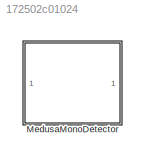
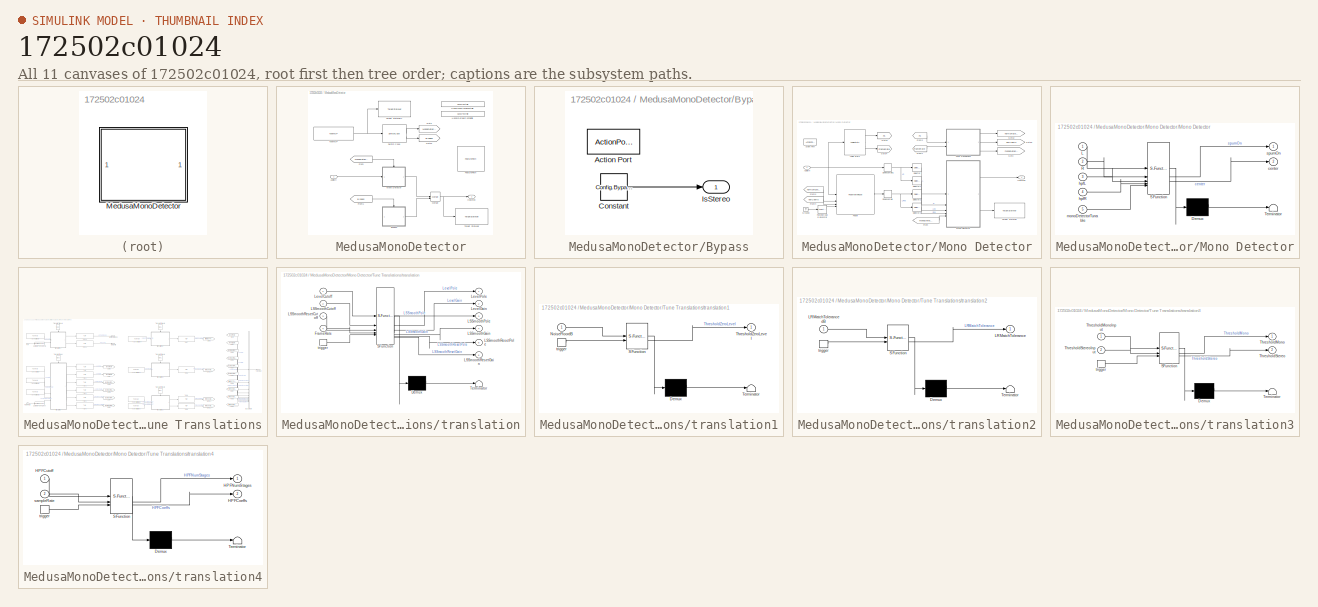
[diagram: thumbnail index - all 11 canvases of the model, root first then tree order]
MODEL slx_172502c01024
KIND library
CONFIG AbsTol = auto
CONFIG EnableMultiTasking = off
CONFIG FixedStep = auto
CONFIG MaxStep = auto
CONFIG MinStep = auto
CONFIG RelTol = 1e-3
CONFIG SampleTimeConstraint = Unconstrained
CONFIG SolverName = VariableStepAuto
CONFIG StartTime = 0.0
CONFIG StopTime = 10.0
BLOCK [SubSystem] MedusaMonoDetector
BLOCK [Inport] MedusaMonoDetector/AudioIn
BLOCK [SubSystem] MedusaMonoDetector/Bypass
BLOCK [ActionPort] MedusaMonoDetector/Bypass/Action Port
  ActionPortLabel = default: { }
BLOCK [Constant] MedusaMonoDetector/Bypass/Constant
  OutDataTypeStr = uint32
  Value = Config.BypassValue
BLOCK [Outport] MedusaMonoDetector/Bypass/IsStereo
  VectorParamsAs1DForOutWhenUnconnected = off
BLOCK [Reference] MedusaMonoDetector/FeaturePath  REF=FeaturePath/FeaturePath
  SourceBlock = FeaturePath/FeaturePath
  SourceProductName = Bose Talaria
  SourceType = Talaria Feature Path
BLOCK [From] MedusaMonoDetector/From
  GotoTag = MonoDetector
BLOCK [From] MedusaMonoDetector/From1
  GotoTag = Bypass
BLOCK [Goto] MedusaMonoDetector/Goto
  GotoTag = MonoDetector
BLOCK [Goto] MedusaMonoDetector/Goto1
  GotoTag = Bypass
BLOCK [Reference] MedusaMonoDetector/HandyDefaultConfigFile  REF=HandyTextFile/HandyTextFile
  SourceBlock = HandyTextFile/HandyTextFile
  SourceProductName = Bose Talaria
  SourceType = Talaria Handy Text File
BLOCK [Reference] MedusaMonoDetector/HandyTuneConfigTextFile  REF=HandyTextFile/HandyTextFile
  SourceBlock = HandyTextFile/HandyTextFile
  SourceProductName = Bose Talaria
  SourceType = Talaria Handy Text File
BLOCK [Outport] MedusaMonoDetector/IsStereo
  VectorParamsAs1DForOutWhenUnconnected = off
BLOCK [Merge] MedusaMonoDetector/Merge
BLOCK [SubSystem] MedusaMonoDetector/Mono Detector
BLOCK [ActionPort] MedusaMonoDetector/Mono Detector/Action Port
  ActionPortLabel = case: { }
BLOCK [Reference] MedusaMonoDetector/Mono Detector/Audio Stats  REF=AudioStats/AudioStats
  SourceBlock = AudioStats/AudioStats
  SourceProductName = Bose Talaria
  SourceType = Talaria Audio Statistics
BLOCK [Inport] MedusaMonoDetector/Mono Detector/AudioIn
  OutDataTypeStr = single
  VarSizeSig = No
BLOCK [DownSample] MedusaMonoDetector/Mono Detector/Downsample
  N = Config.DownSamplingFactor
BLOCK [DownSample] MedusaMonoDetector/Mono Detector/Downsample1
  N = Config.DownSamplingFactor
BLOCK [From] MedusaMonoDetector/Mono Detector/From
  GotoTag = monoDetectorTunable
BLOCK [From] MedusaMonoDetector/Mono Detector/From1
  GotoTag = FrameRate
BLOCK [From] MedusaMonoDetector/Mono Detector/From2
  GotoTag = Fs
BLOCK [From] MedusaMonoDetector/Mono Detector/From3
  GotoTag = hpfNumStages
BLOCK [From] MedusaMonoDetector/Mono Detector/From4
  GotoTag = hpfCoeffs
BLOCK [Reference] MedusaMonoDetector/Mono Detector/Function-Call Generator  REF=simulink/Ports &
Subsystems/Function-Call
Generator
  SourceBlock = simulink/Ports &\nSubsystems/Function-Call\nGenerator
  SourceType = Function-Call Generator
BLOCK [Goto] MedusaMonoDetector/Mono Detector/Goto
  GotoTag = monoDetectorTunable
BLOCK [Goto] MedusaMonoDetector/Mono Detector/Goto1
  GotoTag = Fs
BLOCK [Goto] MedusaMonoDetector/Mono Detector/Goto2
  GotoTag = hpfNumStages
BLOCK [Goto] MedusaMonoDetector/Mono Detector/Goto3
  GotoTag = hpfCoeffs
BLOCK [Goto] MedusaMonoDetector/Mono Detector/Goto4
  GotoTag = FrameRate
BLOCK [Ground] MedusaMonoDetector/Mono Detector/Ground
BLOCK [Outport] MedusaMonoDetector/Mono Detector/IsStereo
  VectorParamsAs1DForOutWhenUnconnected = off
BLOCK [SubSystem] MedusaMonoDetector/Mono Detector/Mono Detector
  ErrorFcn = Stateflow.Translate.translate
  PermitHierarchicalResolution = ExplicitOnly
  SFBlockType = MATLAB Function
  TreatAsAtomicUnit = on
BLOCK [Demux] MedusaMonoDetector/Mono Detector/Mono Detector/ Demux 
  Outputs = 1
BLOCK [S-Function] MedusaMonoDetector/Mono Detector/Mono Detector/ SFunction 
  EnableBusSupport = off
  FunctionName = sf_sfun
  Parameters = maxZeroLevelCount
  PortCounts = [5 3]
  SFcnIsStateOwnerBlock = off
  SFunctionDeploymentMode = off
  Tag = Stateflow S-Function 2
BLOCK [Terminator] MedusaMonoDetector/Mono Detector/Mono Detector/ Terminator 
BLOCK [Inport] MedusaMonoDetector/Mono Detector/Mono Detector/L
BLOCK [Inport] MedusaMonoDetector/Mono Detector/Mono Detector/R
  Port = 2
BLOCK [Outport] MedusaMonoDetector/Mono Detector/Mono Detector/center
  Port = 2
  VectorParamsAs1DForOutWhenUnconnected = off
BLOCK [Inport] MedusaMonoDetector/Mono Detector/Mono Detector/hpfL
  Port = 3
BLOCK [Inport] MedusaMonoDetector/Mono Detector/Mono Detector/hpfR
  Port = 4
BLOCK [Inport] MedusaMonoDetector/Mono Detector/Mono Detector/monoDetectorTunable
  Port = 5
BLOCK [Outport] MedusaMonoDetector/Mono Detector/Mono Detector/spumOn
  VectorParamsAs1DForOutWhenUnconnected = off
BLOCK [Reference] MedusaMonoDetector/Mono Detector/PoolIir  REF=PoolIir/PoolIirWithReset
  SourceBlock = PoolIir/PoolIirWithReset
  SourceType = Bose Pool IIR With Reset
BLOCK [Selector] MedusaMonoDetector/Mono Detector/Selector
  IndexOptions = Index vector (dialog)
  Indices = 1
  InputPortWidth = 2
  OutputSizes = 1
BLOCK [Selector] MedusaMonoDetector/Mono Detector/Selector1
  IndexOptions = Index vector (dialog)
  Indices = 2
  InputPortWidth = 2
  OutputSizes = 1
BLOCK [Selector] MedusaMonoDetector/Mono Detector/Selector2
  IndexOptions = Index vector (dialog)
  Indices = 1
  InputPortWidth = 2
  OutputSizes = 1
BLOCK [Selector] MedusaMonoDetector/Mono Detector/Selector3
  IndexOptions = Index vector (dialog)
  Indices = 2
  InputPortWidth = 2
  OutputSizes = 1
BLOCK [Reference] MedusaMonoDetector/Mono Detector/Target StateVar  REF=StateVar/TargetStateVar
  SourceBlock = StateVar/TargetStateVar
  SourceProductName = Bose Talaria
  SourceType = Talaria Target State Variable
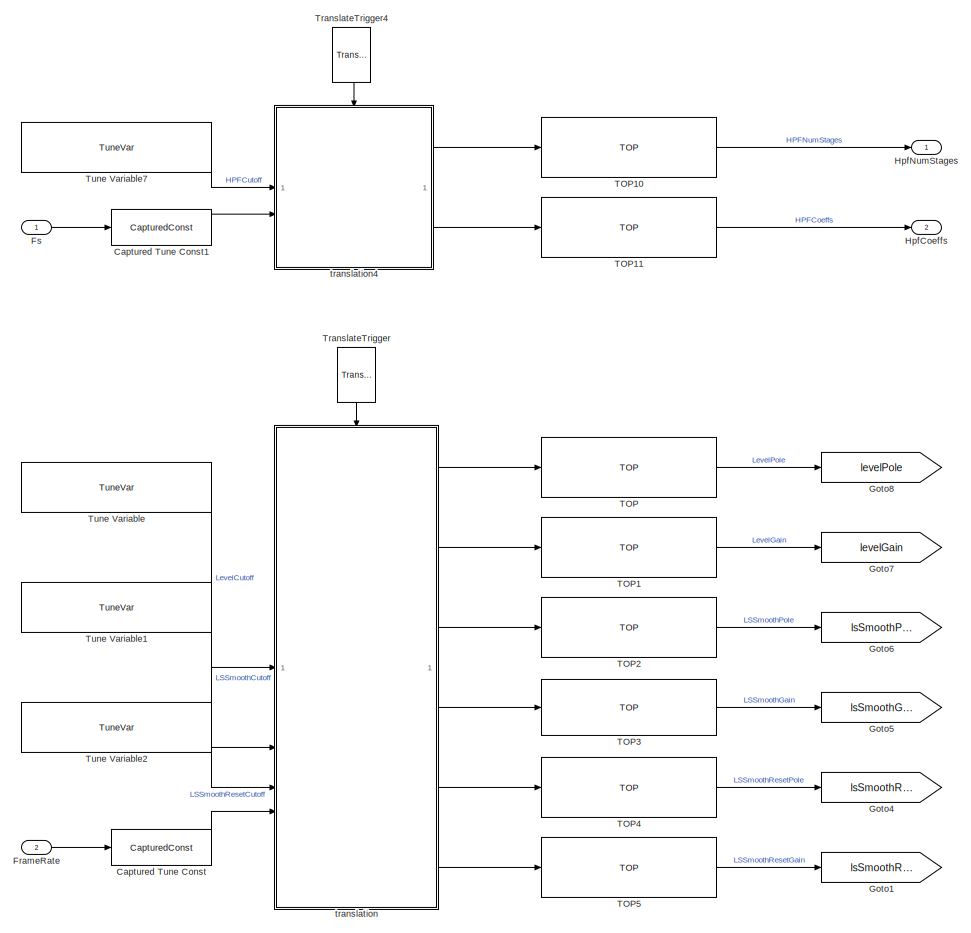
[diagram: MedusaMonoDetector/Mono Detector/Tune Translations - part 1/3, left side, full height]
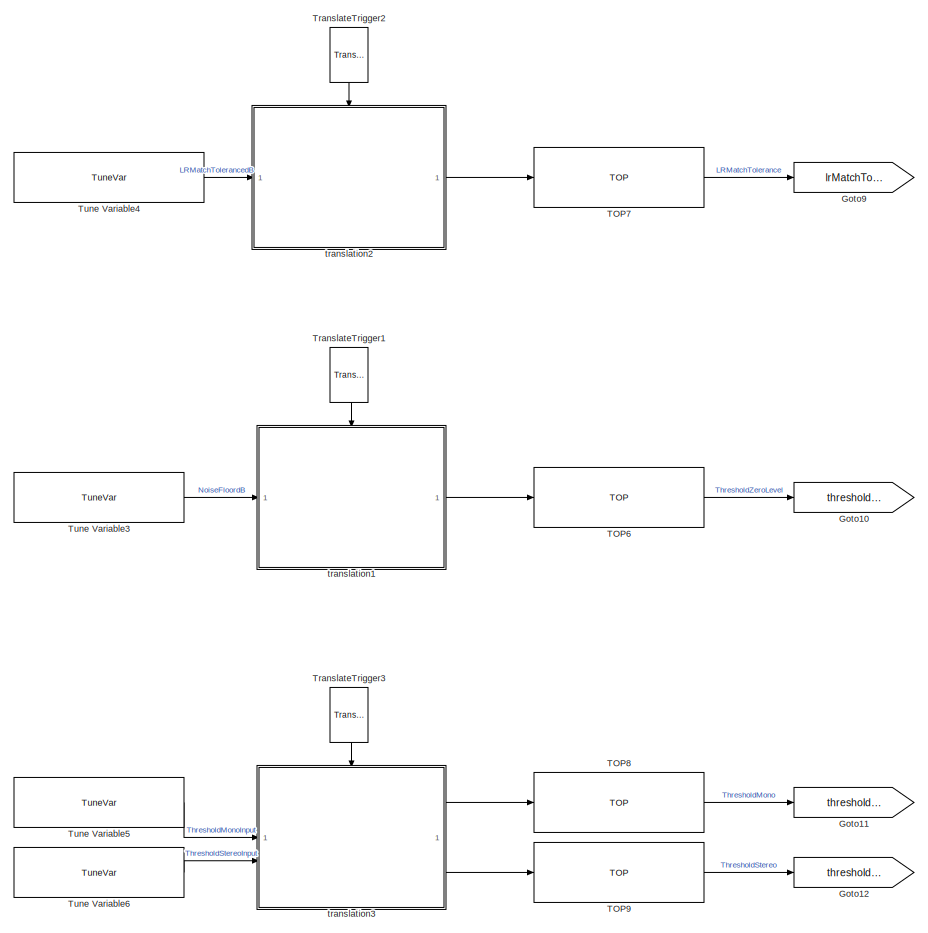
[diagram: MedusaMonoDetector/Mono Detector/Tune Translations - part 2/3, center side, full height]
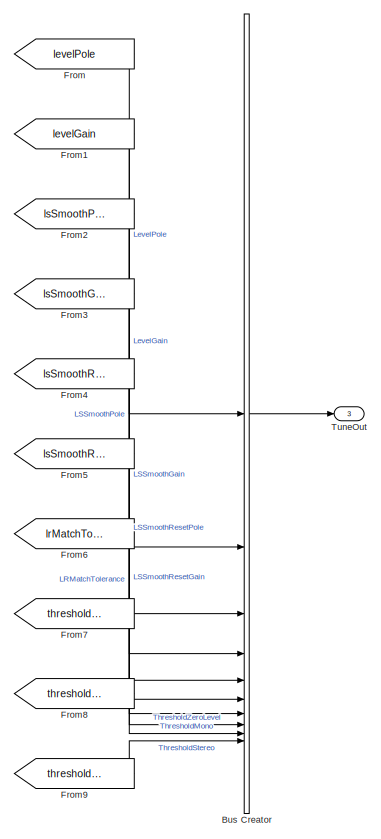
[diagram: MedusaMonoDetector/Mono Detector/Tune Translations - part 3/3, right side, full height]
BLOCK [SubSystem] MedusaMonoDetector/Mono Detector/Tune Translations
BLOCK [BusCreator] MedusaMonoDetector/Mono Detector/Tune Translations/Bus Creator
  DisplayOption = bar
  InheritFromInputs = off
  Inputs = 10
  OutDataTypeStr = Bus: MonoDetectorTunable
BLOCK [Reference] MedusaMonoDetector/Mono Detector/Tune Translations/Captured Tune Const  REF=CapturedConstLib/CapturedConst
  SourceBlock = CapturedConstLib/CapturedConst
  SourceProductName = Bose Talaria
  SourceType = Talaria Captured Constant
BLOCK [Reference] MedusaMonoDetector/Mono Detector/Tune Translations/Captured Tune Const1  REF=CapturedConstLib/CapturedConst
  SourceBlock = CapturedConstLib/CapturedConst
  SourceProductName = Bose Talaria
  SourceType = Talaria Captured Constant
BLOCK [Inport] MedusaMonoDetector/Mono Detector/Tune Translations/FrameRate
  Port = 2
BLOCK [From] MedusaMonoDetector/Mono Detector/Tune Translations/From
  GotoTag = levelPole
BLOCK [From] MedusaMonoDetector/Mono Detector/Tune Translations/From1
  GotoTag = levelGain
BLOCK [From] MedusaMonoDetector/Mono Detector/Tune Translations/From2
  GotoTag = lsSmoothPole
BLOCK [From] MedusaMonoDetector/Mono Detector/Tune Translations/From3
  GotoTag = lsSmoothGain
BLOCK [From] MedusaMonoDetector/Mono Detector/Tune Translations/From4
  GotoTag = lsSmoothResetPole
BLOCK [From] MedusaMonoDetector/Mono Detector/Tune Translations/From5
  GotoTag = lsSmoothResetGain
BLOCK [From] MedusaMonoDetector/Mono Detector/Tune Translations/From6
  GotoTag = lrMatchTolerance
BLOCK [From] MedusaMonoDetector/Mono Detector/Tune Translations/From7
  GotoTag = thresholdZeroLevel
BLOCK [From] MedusaMonoDetector/Mono Detector/Tune Translations/From8
  GotoTag = thresholdMono
BLOCK [From] MedusaMonoDetector/Mono Detector/Tune Translations/From9
  GotoTag = thresholdStereo
BLOCK [Inport] MedusaMonoDetector/Mono Detector/Tune Translations/Fs
BLOCK [Goto] MedusaMonoDetector/Mono Detector/Tune Translations/Goto1
  GotoTag = lsSmoothResetGain
BLOCK [Goto] MedusaMonoDetector/Mono Detector/Tune Translations/Goto10
  GotoTag = thresholdZeroLevel
BLOCK [Goto] MedusaMonoDetector/Mono Detector/Tune Translations/Goto11
  GotoTag = thresholdMono
BLOCK [Goto] MedusaMonoDetector/Mono Detector/Tune Translations/Goto12
  GotoTag = thresholdStereo
BLOCK [Goto] MedusaMonoDetector/Mono Detector/Tune Translations/Goto4
  GotoTag = lsSmoothResetPole
BLOCK [Goto] MedusaMonoDetector/Mono Detector/Tune Translations/Goto5
  GotoTag = lsSmoothGain
BLOCK [Goto] MedusaMonoDetector/Mono Detector/Tune Translations/Goto6
  GotoTag = lsSmoothPole
BLOCK [Goto] MedusaMonoDetector/Mono Detector/Tune Translations/Goto7
  GotoTag = levelGain
BLOCK [Goto] MedusaMonoDetector/Mono Detector/Tune Translations/Goto8
  GotoTag = levelPole
BLOCK [Goto] MedusaMonoDetector/Mono Detector/Tune Translations/Goto9
  GotoTag = lrMatchTolerance
BLOCK [Outport] MedusaMonoDetector/Mono Detector/Tune Translations/HpfCoeffs
  Port = 2
BLOCK [Outport] MedusaMonoDetector/Mono Detector/Tune Translations/HpfNumStages
BLOCK [Reference] MedusaMonoDetector/Mono Detector/Tune Translations/TOP  REF=TOP/TOP
  SourceBlock = TOP/TOP
  SourceProductName = Bose Talaria
  SourceType = Talaria Target Overlay Parameter
BLOCK [Reference] MedusaMonoDetector/Mono Detector/Tune Translations/TOP1  REF=TOP/TOP
  SourceBlock = TOP/TOP
  SourceProductName = Bose Talaria
  SourceType = Talaria Target Overlay Parameter
BLOCK [Reference] MedusaMonoDetector/Mono Detector/Tune Translations/TOP10  REF=TOP/TOP
  SourceBlock = TOP/TOP
  SourceProductName = Bose Talaria
  SourceType = Talaria Target Overlay Parameter
BLOCK [Reference] MedusaMonoDetector/Mono Detector/Tune Translations/TOP11  REF=TOP/TOP
  SourceBlock = TOP/TOP
  SourceProductName = Bose Talaria
  SourceType = Talaria Target Overlay Parameter
BLOCK [Reference] MedusaMonoDetector/Mono Detector/Tune Translations/TOP2  REF=TOP/TOP
  SourceBlock = TOP/TOP
  SourceProductName = Bose Talaria
  SourceType = Talaria Target Overlay Parameter
BLOCK [Reference] MedusaMonoDetector/Mono Detector/Tune Translations/TOP3  REF=TOP/TOP
  SourceBlock = TOP/TOP
  SourceProductName = Bose Talaria
  SourceType = Talaria Target Overlay Parameter
BLOCK [Reference] MedusaMonoDetector/Mono Detector/Tune Translations/TOP4  REF=TOP/TOP
  SourceBlock = TOP/TOP
  SourceProductName = Bose Talaria
  SourceType = Talaria Target Overlay Parameter
BLOCK [Reference] MedusaMonoDetector/Mono Detector/Tune Translations/TOP5  REF=TOP/TOP
  SourceBlock = TOP/TOP
  SourceProductName = Bose Talaria
  SourceType = Talaria Target Overlay Parameter
BLOCK [Reference] MedusaMonoDetector/Mono Detector/Tune Translations/TOP6  REF=TOP/TOP
  SourceBlock = TOP/TOP
  SourceProductName = Bose Talaria
  SourceType = Talaria Target Overlay Parameter
BLOCK [Reference] MedusaMonoDetector/Mono Detector/Tune Translations/TOP7  REF=TOP/TOP
  SourceBlock = TOP/TOP
  SourceProductName = Bose Talaria
  SourceType = Talaria Target Overlay Parameter
BLOCK [Reference] MedusaMonoDetector/Mono Detector/Tune Translations/TOP8  REF=TOP/TOP
  SourceBlock = TOP/TOP
  SourceProductName = Bose Talaria
  SourceType = Talaria Target Overlay Parameter
BLOCK [Reference] MedusaMonoDetector/Mono Detector/Tune Translations/TOP9  REF=TOP/TOP
  SourceBlock = TOP/TOP
  SourceProductName = Bose Talaria
  SourceType = Talaria Target Overlay Parameter
BLOCK [Reference] MedusaMonoDetector/Mono Detector/Tune Translations/TranslateTrigger  REF=TuneVar/TranslateTrigger
  NameLocation = left
  SourceBlock = TuneVar/TranslateTrigger
  SourceProductName = Bose Talaria
  SourceType = Talaria Translate Trigger
BLOCK [Reference] MedusaMonoDetector/Mono Detector/Tune Translations/TranslateTrigger1  REF=TuneVar/TranslateTrigger
  NameLocation = left
  SourceBlock = TuneVar/TranslateTrigger
  SourceProductName = Bose Talaria
  SourceType = Talaria Translate Trigger
BLOCK [Reference] MedusaMonoDetector/Mono Detector/Tune Translations/TranslateTrigger2  REF=TuneVar/TranslateTrigger
  NameLocation = left
  SourceBlock = TuneVar/TranslateTrigger
  SourceProductName = Bose Talaria
  SourceType = Talaria Translate Trigger
BLOCK [Reference] MedusaMonoDetector/Mono Detector/Tune Translations/TranslateTrigger3  REF=TuneVar/TranslateTrigger
  NameLocation = left
  SourceBlock = TuneVar/TranslateTrigger
  SourceProductName = Bose Talaria
  SourceType = Talaria Translate Trigger
BLOCK [Reference] MedusaMonoDetector/Mono Detector/Tune Translations/TranslateTrigger4  REF=TuneVar/TranslateTrigger
  NameLocation = left
  SourceBlock = TuneVar/TranslateTrigger
  SourceProductName = Bose Talaria
  SourceType = Talaria Translate Trigger
BLOCK [Reference] MedusaMonoDetector/Mono Detector/Tune Translations/Tune Variable  REF=TuneVar/TuneVar
  SourceBlock = TuneVar/TuneVar
  SourceProductName = Bose Talaria
  SourceType = Talaria Tune Variable
BLOCK [Reference] MedusaMonoDetector/Mono Detector/Tune Translations/Tune Variable1  REF=TuneVar/TuneVar
  SourceBlock = TuneVar/TuneVar
  SourceProductName = Bose Talaria
  SourceType = Talaria Tune Variable
BLOCK [Reference] MedusaMonoDetector/Mono Detector/Tune Translations/Tune Variable2  REF=TuneVar/TuneVar
  SourceBlock = TuneVar/TuneVar
  SourceProductName = Bose Talaria
  SourceType = Talaria Tune Variable
BLOCK [Reference] MedusaMonoDetector/Mono Detector/Tune Translations/Tune Variable3  REF=TuneVar/TuneVar
  SourceBlock = TuneVar/TuneVar
  SourceProductName = Bose Talaria
  SourceType = Talaria Tune Variable
BLOCK [Reference] MedusaMonoDetector/Mono Detector/Tune Translations/Tune Variable4  REF=TuneVar/TuneVar
  SourceBlock = TuneVar/TuneVar
  SourceProductName = Bose Talaria
  SourceType = Talaria Tune Variable
BLOCK [Reference] MedusaMonoDetector/Mono Detector/Tune Translations/Tune Variable5  REF=TuneVar/TuneVar
  SourceBlock = TuneVar/TuneVar
  SourceProductName = Bose Talaria
  SourceType = Talaria Tune Variable
BLOCK [Reference] MedusaMonoDetector/Mono Detector/Tune Translations/Tune Variable6  REF=TuneVar/TuneVar
  SourceBlock = TuneVar/TuneVar
  SourceProductName = Bose Talaria
  SourceType = Talaria Tune Variable
BLOCK [Reference] MedusaMonoDetector/Mono Detector/Tune Translations/Tune Variable7  REF=TuneVar/TuneVar
  SourceBlock = TuneVar/TuneVar
  SourceProductName = Bose Talaria
  SourceType = Talaria Tune Variable
BLOCK [Outport] MedusaMonoDetector/Mono Detector/Tune Translations/TuneOut
  Port = 3
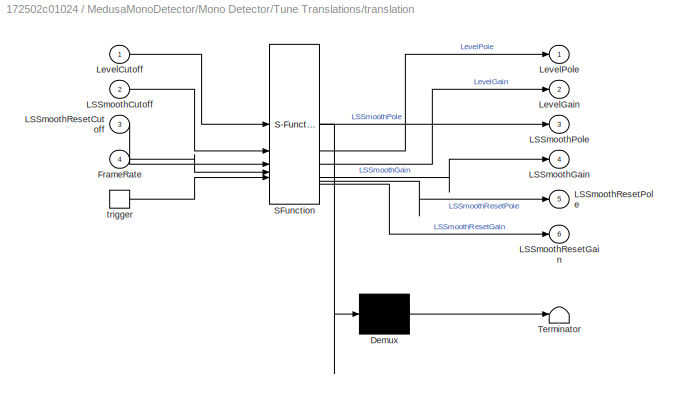
BLOCK [SubSystem] MedusaMonoDetector/Mono Detector/Tune Translations/translation
  ErrorFcn = Stateflow.Translate.translate
  PermitHierarchicalResolution = ExplicitOnly
  SFBlockType = MATLAB Function
  TreatAsAtomicUnit = on
BLOCK [Demux] MedusaMonoDetector/Mono Detector/Tune Translations/translation/ Demux 
  Outputs = 1
BLOCK [S-Function] MedusaMonoDetector/Mono Detector/Tune Translations/translation/ SFunction 
  EnableBusSupport = off
  FunctionName = sf_sfun
  PortCounts = [5 7]
  SFcnIsStateOwnerBlock = off
  SFunctionDeploymentMode = off
  Tag = Stateflow S-Function 8
BLOCK [Terminator] MedusaMonoDetector/Mono Detector/Tune Translations/translation/ Terminator 
BLOCK [Inport] MedusaMonoDetector/Mono Detector/Tune Translations/translation/FrameRate
  Port = 4
BLOCK [Inport] MedusaMonoDetector/Mono Detector/Tune Translations/translation/LSSmoothCutoff
  Port = 2
BLOCK [Outport] MedusaMonoDetector/Mono Detector/Tune Translations/translation/LSSmoothGain
  Port = 4
  VectorParamsAs1DForOutWhenUnconnected = off
BLOCK [Outport] MedusaMonoDetector/Mono Detector/Tune Translations/translation/LSSmoothPole
  Port = 3
  VectorParamsAs1DForOutWhenUnconnected = off
BLOCK [Inport] MedusaMonoDetector/Mono Detector/Tune Translations/translation/LSSmoothResetCutoff
  Port = 3
BLOCK [Outport] MedusaMonoDetector/Mono Detector/Tune Translations/translation/LSSmoothResetGain
  Port = 6
  VectorParamsAs1DForOutWhenUnconnected = off
BLOCK [Outport] MedusaMonoDetector/Mono Detector/Tune Translations/translation/LSSmoothResetPole
  Port = 5
  VectorParamsAs1DForOutWhenUnconnected = off
BLOCK [Inport] MedusaMonoDetector/Mono Detector/Tune Translations/translation/LevelCutoff
BLOCK [Outport] MedusaMonoDetector/Mono Detector/Tune Translations/translation/LevelGain
  Port = 2
  VectorParamsAs1DForOutWhenUnconnected = off
BLOCK [Outport] MedusaMonoDetector/Mono Detector/Tune Translations/translation/LevelPole
  VectorParamsAs1DForOutWhenUnconnected = off
BLOCK [TriggerPort] MedusaMonoDetector/Mono Detector/Tune Translations/translation/trigger
  ShowOutputPort = on
  StatesWhenEnabling = held
  TriggerType = function-call
  VariantControl = Variant
BLOCK [SubSystem] MedusaMonoDetector/Mono Detector/Tune Translations/translation1
  ErrorFcn = Stateflow.Translate.translate
  PermitHierarchicalResolution = ExplicitOnly
  SFBlockType = MATLAB Function
  TreatAsAtomicUnit = on
BLOCK [Demux] MedusaMonoDetector/Mono Detector/Tune Translations/translation1/ Demux 
  Outputs = 1
BLOCK [S-Function] MedusaMonoDetector/Mono Detector/Tune Translations/translation1/ SFunction 
  EnableBusSupport = off
  FunctionName = sf_sfun
  PortCounts = [2 2]
  SFcnIsStateOwnerBlock = off
  SFunctionDeploymentMode = off
  Tag = Stateflow S-Function 1
BLOCK [Terminator] MedusaMonoDetector/Mono Detector/Tune Translations/translation1/ Terminator 
BLOCK [Inport] MedusaMonoDetector/Mono Detector/Tune Translations/translation1/NoiseFloordB
BLOCK [Outport] MedusaMonoDetector/Mono Detector/Tune Translations/translation1/ThresholdZeroLevel
  VectorParamsAs1DForOutWhenUnconnected = off
BLOCK [TriggerPort] MedusaMonoDetector/Mono Detector/Tune Translations/translation1/trigger
  ShowOutputPort = on
  StatesWhenEnabling = held
  TriggerType = function-call
  VariantControl = Variant
BLOCK [SubSystem] MedusaMonoDetector/Mono Detector/Tune Translations/translation2
  ErrorFcn = Stateflow.Translate.translate
  PermitHierarchicalResolution = ExplicitOnly
  SFBlockType = MATLAB Function
  TreatAsAtomicUnit = on
BLOCK [Demux] MedusaMonoDetector/Mono Detector/Tune Translations/translation2/ Demux 
  Outputs = 1
BLOCK [S-Function] MedusaMonoDetector/Mono Detector/Tune Translations/translation2/ SFunction 
  EnableBusSupport = off
  FunctionName = sf_sfun
  PortCounts = [2 2]
  SFcnIsStateOwnerBlock = off
  SFunctionDeploymentMode = off
  Tag = Stateflow S-Function 3
BLOCK [Terminator] MedusaMonoDetector/Mono Detector/Tune Translations/translation2/ Terminator 
BLOCK [Outport] MedusaMonoDetector/Mono Detector/Tune Translations/translation2/LRMatchTolerance
  VectorParamsAs1DForOutWhenUnconnected = off
BLOCK [Inport] MedusaMonoDetector/Mono Detector/Tune Translations/translation2/LRMatchTolerancedB
BLOCK [TriggerPort] MedusaMonoDetector/Mono Detector/Tune Translations/translation2/trigger
  ShowOutputPort = on
  StatesWhenEnabling = held
  TriggerType = function-call
  VariantControl = Variant
BLOCK [SubSystem] MedusaMonoDetector/Mono Detector/Tune Translations/translation3
  ErrorFcn = Stateflow.Translate.translate
  PermitHierarchicalResolution = ExplicitOnly
  SFBlockType = MATLAB Function
  TreatAsAtomicUnit = on
BLOCK [Demux] MedusaMonoDetector/Mono Detector/Tune Translations/translation3/ Demux 
  Outputs = 1
BLOCK [S-Function] MedusaMonoDetector/Mono Detector/Tune Translations/translation3/ SFunction 
  EnableBusSupport = off
  FunctionName = sf_sfun
  PortCounts = [3 3]
  SFcnIsStateOwnerBlock = off
  SFunctionDeploymentMode = off
  Tag = Stateflow S-Function 4
BLOCK [Terminator] MedusaMonoDetector/Mono Detector/Tune Translations/translation3/ Terminator 
BLOCK [Outport] MedusaMonoDetector/Mono Detector/Tune Translations/translation3/ThresholdMono
  VectorParamsAs1DForOutWhenUnconnected = off
BLOCK [Inport] MedusaMonoDetector/Mono Detector/Tune Translations/translation3/ThresholdMonoInput
BLOCK [Outport] MedusaMonoDetector/Mono Detector/Tune Translations/translation3/ThresholdStereo
  Port = 2
  VectorParamsAs1DForOutWhenUnconnected = off
BLOCK [Inport] MedusaMonoDetector/Mono Detector/Tune Translations/translation3/ThresholdStereoInput
  Port = 2
BLOCK [TriggerPort] MedusaMonoDetector/Mono Detector/Tune Translations/translation3/trigger
  ShowOutputPort = on
  StatesWhenEnabling = held
  TriggerType = function-call
  VariantControl = Variant
BLOCK [SubSystem] MedusaMonoDetector/Mono Detector/Tune Translations/translation4
  ErrorFcn = Stateflow.Translate.translate
  PermitHierarchicalResolution = ExplicitOnly
  SFBlockType = MATLAB Function
  TreatAsAtomicUnit = on
BLOCK [Demux] MedusaMonoDetector/Mono Detector/Tune Translations/translation4/ Demux 
  Outputs = 1
BLOCK [S-Function] MedusaMonoDetector/Mono Detector/Tune Translations/translation4/ SFunction 
  EnableBusSupport = off
  FunctionName = sf_sfun
  Parameters = maxNumStages,numChannels
  PortCounts = [3 3]
  SFcnIsStateOwnerBlock = off
  SFunctionDeploymentMode = off
  Tag = Stateflow S-Function 5
BLOCK [Terminator] MedusaMonoDetector/Mono Detector/Tune Translations/translation4/ Terminator 
BLOCK [Outport] MedusaMonoDetector/Mono Detector/Tune Translations/translation4/HPFCoeffs
  Port = 2
  VectorParamsAs1DForOutWhenUnconnected = off
BLOCK [Inport] MedusaMonoDetector/Mono Detector/Tune Translations/translation4/HPFCutoff
BLOCK [Outport] MedusaMonoDetector/Mono Detector/Tune Translations/translation4/HPFNumStages
  VectorParamsAs1DForOutWhenUnconnected = off
BLOCK [Inport] MedusaMonoDetector/Mono Detector/Tune Translations/translation4/sampleRate
  Port = 2
BLOCK [TriggerPort] MedusaMonoDetector/Mono Detector/Tune Translations/translation4/trigger
  ShowOutputPort = on
  StatesWhenEnabling = held
  TriggerType = function-call
  VariantControl = Variant
BLOCK [SwitchCase] MedusaMonoDetector/Switch Case
BLOCK [Reference] MedusaMonoDetector/Target StateVar  REF=StateVar/TargetStateVar
  SourceBlock = StateVar/TargetStateVar
  SourceProductName = Bose Talaria
  SourceType = Talaria Target State Variable
BLOCK [Reference] MedusaMonoDetector/Target StateVar1  REF=StateVar/TargetStateVar
  SourceBlock = StateVar/TargetStateVar
  SourceProductName = Bose Talaria
  SourceType = Talaria Target State Variable
BLOCK [Reference] MedusaMonoDetector/TuneTOP  REF=TuneVar/TuneTOP
  SourceBlock = TuneVar/TuneTOP
  SourceProductName = Bose Talaria
  SourceType = Talaria Trivial Tune TOP
LINE MedusaMonoDetector/AudioIn:1 -> MedusaMonoDetector/Mono Detector:1
LINE MedusaMonoDetector/Bypass/Constant:1 -> MedusaMonoDetector/Bypass/IsStereo:1
LINE MedusaMonoDetector/Bypass:1 -> MedusaMonoDetector/Merge:2
LINE MedusaMonoDetector/From1:1 -> MedusaMonoDetector/Bypass:ifaction
LINE MedusaMonoDetector/From:1 -> MedusaMonoDetector/Mono Detector:ifaction
NET MedusaMonoDetector/Merge:1 -> MedusaMonoDetector/IsStereo:1, MedusaMonoDetector/Target StateVar:1
LINE MedusaMonoDetector/Mono Detector/Audio Stats:1 -> MedusaMonoDetector/Mono Detector/Goto1:1
LINE MedusaMonoDetector/Mono Detector/Audio Stats:2 -> MedusaMonoDetector/Mono Detector/Goto4:1
NET MedusaMonoDetector/Mono Detector/AudioIn:1 -> MedusaMonoDetector/Mono Detector/Audio Stats:1, MedusaMonoDetector/Mono Detector/Downsample1:1, MedusaMonoDetector/Mono Detector/PoolIir:1
NET MedusaMonoDetector/Mono Detector/Downsample1:1 -> MedusaMonoDetector/Mono Detector/Selector1:1, MedusaMonoDetector/Mono Detector/Selector:1
NET MedusaMonoDetector/Mono Detector/Downsample:1 -> MedusaMonoDetector/Mono Detector/Selector2:1, MedusaMonoDetector/Mono Detector/Selector3:1
LINE MedusaMonoDetector/Mono Detector/From1:1 -> MedusaMonoDetector/Mono Detector/Tune Translations:2
LINE MedusaMonoDetector/Mono Detector/From2:1 -> MedusaMonoDetector/Mono Detector/Tune Translations:1
LINE MedusaMonoDetector/Mono Detector/From3:1 -> MedusaMonoDetector/Mono Detector/PoolIir:2
LINE MedusaMonoDetector/Mono Detector/From4:1 -> MedusaMonoDetector/Mono Detector/PoolIir:3
LINE MedusaMonoDetector/Mono Detector/From:1 -> MedusaMonoDetector/Mono Detector/Mono Detector:5
LINE MedusaMonoDetector/Mono Detector/Function-Call Generator:1 -> MedusaMonoDetector/Mono Detector/PoolIir:4
LINE MedusaMonoDetector/Mono Detector/Ground:1 -> MedusaMonoDetector/Mono Detector/Function-Call Generator:1
LINE MedusaMonoDetector/Mono Detector/Mono Detector:1 -> MedusaMonoDetector/Mono Detector/IsStereo:1
LINE MedusaMonoDetector/Mono Detector/Mono Detector:2 -> MedusaMonoDetector/Mono Detector/Target StateVar:1
LINE MedusaMonoDetector/Mono Detector/PoolIir:1 -> MedusaMonoDetector/Mono Detector/Downsample:1
LINE MedusaMonoDetector/Mono Detector/Selector1:1 -> MedusaMonoDetector/Mono Detector/Mono Detector:2
LINE MedusaMonoDetector/Mono Detector/Selector2:1 -> MedusaMonoDetector/Mono Detector/Mono Detector:3
LINE MedusaMonoDetector/Mono Detector/Selector3:1 -> MedusaMonoDetector/Mono Detector/Mono Detector:4
LINE MedusaMonoDetector/Mono Detector/Selector:1 -> MedusaMonoDetector/Mono Detector/Mono Detector:1
LINE MedusaMonoDetector/Mono Detector/Tune Translations/Bus Creator:1 -> MedusaMonoDetector/Mono Detector/Tune Translations/TuneOut:1
LINE MedusaMonoDetector/Mono Detector/Tune Translations/Captured Tune Const1:1 -> MedusaMonoDetector/Mono Detector/Tune Translations/translation4:2
LINE MedusaMonoDetector/Mono Detector/Tune Translations/Captured Tune Const:1 -> MedusaMonoDetector/Mono Detector/Tune Translations/translation:4
LINE MedusaMonoDetector/Mono Detector/Tune Translations/FrameRate:1 -> MedusaMonoDetector/Mono Detector/Tune Translations/Captured Tune Const:1
LINE MedusaMonoDetector/Mono Detector/Tune Translations/From1:1 -> MedusaMonoDetector/Mono Detector/Tune Translations/Bus Creator:2
LINE MedusaMonoDetector/Mono Detector/Tune Translations/From2:1 -> MedusaMonoDetector/Mono Detector/Tune Translations/Bus Creator:3
LINE MedusaMonoDetector/Mono Detector/Tune Translations/From3:1 -> MedusaMonoDetector/Mono Detector/Tune Translations/Bus Creator:4
LINE MedusaMonoDetector/Mono Detector/Tune Translations/From4:1 -> MedusaMonoDetector/Mono Detector/Tune Translations/Bus Creator:5
LINE MedusaMonoDetector/Mono Detector/Tune Translations/From5:1 -> MedusaMonoDetector/Mono Detector/Tune Translations/Bus Creator:6
LINE MedusaMonoDetector/Mono Detector/Tune Translations/From6:1 -> MedusaMonoDetector/Mono Detector/Tune Translations/Bus Creator:7
LINE MedusaMonoDetector/Mono Detector/Tune Translations/From7:1 -> MedusaMonoDetector/Mono Detector/Tune Translations/Bus Creator:8
LINE MedusaMonoDetector/Mono Detector/Tune Translations/From8:1 -> MedusaMonoDetector/Mono Detector/Tune Translations/Bus Creator:9
LINE MedusaMonoDetector/Mono Detector/Tune Translations/From9:1 -> MedusaMonoDetector/Mono Detector/Tune Translations/Bus Creator:10
LINE MedusaMonoDetector/Mono Detector/Tune Translations/From:1 -> MedusaMonoDetector/Mono Detector/Tune Translations/Bus Creator:1
LINE MedusaMonoDetector/Mono Detector/Tune Translations/Fs:1 -> MedusaMonoDetector/Mono Detector/Tune Translations/Captured Tune Const1:1
LINE MedusaMonoDetector/Mono Detector/Tune Translations/TOP10:1 -> MedusaMonoDetector/Mono Detector/Tune Translations/HpfNumStages:1
LINE MedusaMonoDetector/Mono Detector/Tune Translations/TOP11:1 -> MedusaMonoDetector/Mono Detector/Tune Translations/HpfCoeffs:1
LINE MedusaMonoDetector/Mono Detector/Tune Translations/TOP1:1 -> MedusaMonoDetector/Mono Detector/Tune Translations/Goto7:1
LINE MedusaMonoDetector/Mono Detector/Tune Translations/TOP2:1 -> MedusaMonoDetector/Mono Detector/Tune Translations/Goto6:1
LINE MedusaMonoDetector/Mono Detector/Tune Translations/TOP3:1 -> MedusaMonoDetector/Mono Detector/Tune Translations/Goto5:1
LINE MedusaMonoDetector/Mono Detector/Tune Translations/TOP4:1 -> MedusaMonoDetector/Mono Detector/Tune Translations/Goto4:1
LINE MedusaMonoDetector/Mono Detector/Tune Translations/TOP5:1 -> MedusaMonoDetector/Mono Detector/Tune Translations/Goto1:1
LINE MedusaMonoDetector/Mono Detector/Tune Translations/TOP6:1 -> MedusaMonoDetector/Mono Detector/Tune Translations/Goto10:1
LINE MedusaMonoDetector/Mono Detector/Tune Translations/TOP7:1 -> MedusaMonoDetector/Mono Detector/Tune Translations/Goto9:1
LINE MedusaMonoDetector/Mono Detector/Tune Translations/TOP8:1 -> MedusaMonoDetector/Mono Detector/Tune Translations/Goto11:1
LINE MedusaMonoDetector/Mono Detector/Tune Translations/TOP9:1 -> MedusaMonoDetector/Mono Detector/Tune Translations/Goto12:1
LINE MedusaMonoDetector/Mono Detector/Tune Translations/TOP:1 -> MedusaMonoDetector/Mono Detector/Tune Translations/Goto8:1
LINE MedusaMonoDetector/Mono Detector/Tune Translations/TranslateTrigger1:1 -> MedusaMonoDetector/Mono Detector/Tune Translations/translation1:trigger
LINE MedusaMonoDetector/Mono Detector/Tune Translations/TranslateTrigger2:1 -> MedusaMonoDetector/Mono Detector/Tune Translations/translation2:trigger
LINE MedusaMonoDetector/Mono Detector/Tune Translations/TranslateTrigger3:1 -> MedusaMonoDetector/Mono Detector/Tune Translations/translation3:trigger
LINE MedusaMonoDetector/Mono Detector/Tune Translations/TranslateTrigger4:1 -> MedusaMonoDetector/Mono Detector/Tune Translations/translation4:trigger
LINE MedusaMonoDetector/Mono Detector/Tune Translations/TranslateTrigger:1 -> MedusaMonoDetector/Mono Detector/Tune Translations/translation:trigger
LINE MedusaMonoDetector/Mono Detector/Tune Translations/Tune Variable1:1 -> MedusaMonoDetector/Mono Detector/Tune Translations/translation:2
LINE MedusaMonoDetector/Mono Detector/Tune Translations/Tune Variable2:1 -> MedusaMonoDetector/Mono Detector/Tune Translations/translation:3
LINE MedusaMonoDetector/Mono Detector/Tune Translations/Tune Variable3:1 -> MedusaMonoDetector/Mono Detector/Tune Translations/translation1:1
LINE MedusaMonoDetector/Mono Detector/Tune Translations/Tune Variable4:1 -> MedusaMonoDetector/Mono Detector/Tune Translations/translation2:1
LINE MedusaMonoDetector/Mono Detector/Tune Translations/Tune Variable5:1 -> MedusaMonoDetector/Mono Detector/Tune Translations/translation3:1
LINE MedusaMonoDetector/Mono Detector/Tune Translations/Tune Variable6:1 -> MedusaMonoDetector/Mono Detector/Tune Translations/translation3:2
LINE MedusaMonoDetector/Mono Detector/Tune Translations/Tune Variable7:1 -> MedusaMonoDetector/Mono Detector/Tune Translations/translation4:1
LINE MedusaMonoDetector/Mono Detector/Tune Translations/Tune Variable:1 -> MedusaMonoDetector/Mono Detector/Tune Translations/translation:1
LINE MedusaMonoDetector/Mono Detector/Tune Translations/translation1:1 -> MedusaMonoDetector/Mono Detector/Tune Translations/TOP6:1
LINE MedusaMonoDetector/Mono Detector/Tune Translations/translation2:1 -> MedusaMonoDetector/Mono Detector/Tune Translations/TOP7:1
LINE MedusaMonoDetector/Mono Detector/Tune Translations/translation3:1 -> MedusaMonoDetector/Mono Detector/Tune Translations/TOP8:1
LINE MedusaMonoDetector/Mono Detector/Tune Translations/translation3:2 -> MedusaMonoDetector/Mono Detector/Tune Translations/TOP9:1
LINE MedusaMonoDetector/Mono Detector/Tune Translations/translation4:1 -> MedusaMonoDetector/Mono Detector/Tune Translations/TOP10:1
LINE MedusaMonoDetector/Mono Detector/Tune Translations/translation4:2 -> MedusaMonoDetector/Mono Detector/Tune Translations/TOP11:1
LINE MedusaMonoDetector/Mono Detector/Tune Translations/translation:1 -> MedusaMonoDetector/Mono Detector/Tune Translations/TOP:1
LINE MedusaMonoDetector/Mono Detector/Tune Translations/translation:2 -> MedusaMonoDetector/Mono Detector/Tune Translations/TOP1:1
LINE MedusaMonoDetector/Mono Detector/Tune Translations/translation:3 -> MedusaMonoDetector/Mono Detector/Tune Translations/TOP2:1
LINE MedusaMonoDetector/Mono Detector/Tune Translations/translation:4 -> MedusaMonoDetector/Mono Detector/Tune Translations/TOP3:1
LINE MedusaMonoDetector/Mono Detector/Tune Translations/translation:5 -> MedusaMonoDetector/Mono Detector/Tune Translations/TOP4:1
LINE MedusaMonoDetector/Mono Detector/Tune Translations/translation:6 -> MedusaMonoDetector/Mono Detector/Tune Translations/TOP5:1
LINE MedusaMonoDetector/Mono Detector/Tune Translations:1 -> MedusaMonoDetector/Mono Detector/Goto2:1
LINE MedusaMonoDetector/Mono Detector/Tune Translations:2 -> MedusaMonoDetector/Mono Detector/Goto3:1
LINE MedusaMonoDetector/Mono Detector/Tune Translations:3 -> MedusaMonoDetector/Mono Detector/Goto:1
LINE MedusaMonoDetector/Mono Detector:1 -> MedusaMonoDetector/Merge:1
LINE MedusaMonoDetector/Switch Case:1 -> MedusaMonoDetector/Goto:1
LINE MedusaMonoDetector/Switch Case:2 -> MedusaMonoDetector/Goto1:1
NET MedusaMonoDetector/TuneTOP:1 -> MedusaMonoDetector/Switch Case:1, MedusaMonoDetector/Target StateVar1:1
note: NET lines group one-source signal fan-out (src -> all destinations, sorted); 1:1 wires keep LINE
CHART MedusaMonoDetector/Mono Detector/Tune Translations/translation1 states=1 transitions=1
  STATE_LABEL 'eML_blk_kernel()'
  STATE_LABEL 'SCRIPT:\nfunction ThresholdZeroLevel  = fcn(NoiseFloordB)\n% thresh = 2 * undb20(noiseFloordB)\nThresholdZeroLevel = 2 * (10 ^ (NoiseFloordB.Value / 20));'
CHART MedusaMonoDetector/Mono Detector/Mono Detector states=1 transitions=1
  STATE_LABEL 'eML_blk_kernel()'
  STATE_LABEL 'SCRIPT:\nfunction [spumOn, center]  = monoDetect(L, R, hpfL, hpfR, ...\n                                monoDetectorTunable, maxZeroLevelCount)\n%#codegen\n\npersistent zeroLevelCount;\npersistent Llevel;\npersistent Rlevel;\npersistent smoothedSumOfEnergies;\npersistent smoothedEnergyOfSum;\npersistent levelCenter;\npersistent lastSpumOn; % basically isStereo, since we turn on SPUM if input is stereo\n\nif is...<+2587ch>'
CHART MedusaMonoDetector/Mono Detector/Tune Translations/translation2 states=1 transitions=1
  STATE_LABEL 'eML_blk_kernel()'
  STATE_LABEL "SCRIPT:\nfunction LRMatchTolerance  = fcn(LRMatchTolerancedB)\n\nif (LRMatchTolerancedB.Value < 0 || LRMatchTolerancedB.Value > 0.5)\n    TranslateError('Invalid tolerance for left right match');\n    LRMatchTolerance = 0;\nelse\n    LRMatchTolerance = 10 ^ (LRMatchTolerancedB.Value / 20);\nend"
CHART MedusaMonoDetector/Mono Detector/Tune Translations/translation3 states=1 transitions=1
  STATE_LABEL 'eML_blk_kernel()'
  STATE_LABEL 'SCRIPT:\nfunction [ThresholdMono, ThresholdStereo] = fcn(ThresholdMonoInput, ThresholdStereoInput)\n% The exponent 1/64 is carried over from AR and old bdsp implementation.\n% This is designed by Chris Cheng to make the gap between two thresholds\n% as small as possible, because in theory they should be almost identical.\n% Removing this would still work in theory with a slight change in the \n% output....<+649ch>'
CHART MedusaMonoDetector/Mono Detector/Tune Translations/translation4 states=1 transitions=1
  STATE_LABEL 'eML_blk_kernel()'
  STATE_LABEL 'SCRIPT:\nfunction [HPFNumStages, HPFCoeffs] = fcn(HPFCutoff, sampleRate, numChannels, maxNumStages)\n%#codegen\n%[Param:numChannels]\n%[Param:maxNumStages]\n\n% Calculation is fixed for a second order high pass butterworth, i.e. this \n% translation will not work anymore if the filter order/design is changed. \n% Code for computing hpf is taken from AR model.\n% More generic implementation is also included...<+3258ch>'
CHART MedusaMonoDetector/Mono Detector/Tune Translations/translation states=1 transitions=1
  STATE_LABEL 'eML_blk_kernel()'
  STATE_LABEL 'SCRIPT:\nfunction [LevelPole, LevelGain, LSSmoothPole, LSSmoothGain, ...\n    LSSmoothResetPole, LSSmoothResetGain] = fcn(LevelCutoff, ...\n    LSSmoothCutoff, LSSmoothResetCutoff, FrameRate)\n\n% Cutoff is the inverse of time constant in Hz. So this function\n% basically converts reciprocal of time constant to first order iir\n% filter coefficient.\n% Reference: https://bosecorp.sharepoint.com/sites/ASD3...<+1025ch>'
CHART  states=0 transitions=0
CHART  states=0 transitions=0
CHART  states=0 transitions=0
CHART  states=0 transitions=0
CHART  states=0 transitions=0
CHART  states=0 transitions=0
